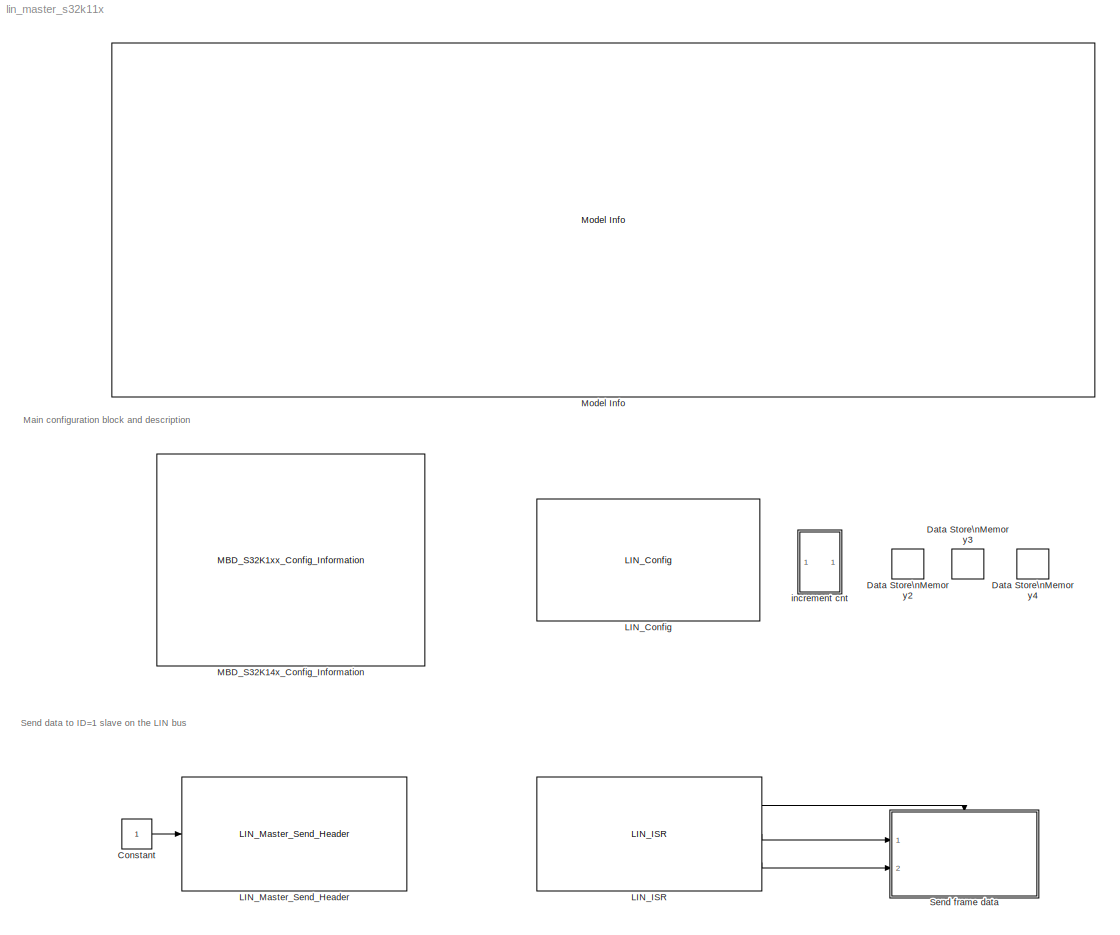
MODEL lin_master_s32k11x
KIND model
CONFIG InitFcn = mbd_s32k_consistency_checks(bdroot(gcs));
BLOCK [Constant] Constant
  OutDataTypeStr = uint8
  SID = 80
BLOCK [DataStoreMemory] Data Store\nMemory2
  DataStoreName = event
  OutDataTypeStr = uint8
  ReadBeforeWriteMsg = warning
  SID = 112
  ShowAdditionalParam = off
  WriteAfterReadMsg = warning
  WriteAfterWriteMsg = warning
BLOCK [DataStoreMemory] Data Store\nMemory3
  DataStoreName = frameid
  OutDataTypeStr = uint8
  ReadBeforeWriteMsg = warning
  SID = 113
  ShowAdditionalParam = off
  WriteAfterReadMsg = warning
  WriteAfterWriteMsg = warning
BLOCK [DataStoreMemory] Data Store\nMemory4
  DataStoreName = send
  InitialValue = [4 4 4 4 4 4]
  OutDataTypeStr = uint8
  ReadBeforeWriteMsg = warning
  SID = 173
  ShowAdditionalParam = off
  WriteAfterReadMsg = warning
  WriteAfterWriteMsg = warning
BLOCK [Reference] LIN_Config  REF=mbd_s32k1xx_ec_toolbox/Communication Blocks/LIN Blocks/LIN_Config
  Ports = []
  Priority = 1
  SID = 76
  SourceBlock = mbd_s32k1xx_ec_toolbox/Communication Blocks/LIN Blocks/LIN_Config
  SourceType = lin_s32k_config
  autobaud_enable = None
  baudrate = 9600
  cts = PTA6: [LPUART1_CTS | Clear To Send (bar)]
  instance = 1
  node_function = MASTER
  rts = PTA7: [LPUART1_RTS | Request To Send]
  rx = PTC6: [LPUART1_RX | Receive]
  tx = PTC7: [LPUART1_TX | Transmit]
BLOCK [Reference] LIN_ISR  REF=mbd_s32k1xx_ec_toolbox/Communication Blocks/LIN Blocks/LIN_ISR
  Ports = [0, 3]
  SID = 196
  SourceBlock = mbd_s32k1xx_ec_toolbox/Communication Blocks/LIN Blocks/LIN_ISR
  SourceType = lin_s32k_isr
  instance = 1
BLOCK [Reference] LIN_Master_Send_Header  REF=mbd_s32k1xx_ec_toolbox/Communication Blocks/LIN Blocks/LIN_Master_Send_Header
  Ports = [1]
  SID = 77
  SourceBlock = mbd_s32k1xx_ec_toolbox/Communication Blocks/LIN Blocks/LIN_Master_Send_Header
  SourceType = lin_s32k_send_header
  instance = 1
BLOCK [Reference] MBD_S32K14x_Config_Information  REF=mbd_s32k1xx_ec_toolbox/MBD_S32K1xx_Config_Information
  ADC_PcrCheckEnDis = on
  AMMCLIB_PcrCheckEnDis = on
  CMP_PcrCheckEnDis = on
  CSEc_PcrCheckEnDis = off
  ConfigParams_PcrCheckEnDis = on
  FM_PcrCheckEnDis = on
  FTM_Dual_Edge_Inputs_PcrCheckEnDis = on
  FTM_Hall_Sensor_Inputs_PcrCheckEnDis = on
  FTM_Input_Edge_Inputs_PcrCheckEnDis = on
  FTM_PWM_PcrCheckEnDis = on
  FTM_Quadrature_Inputs_PcrCheckEnDis = on
  FlexCAN_PcrCheckEnDis = on
  FlexIO_PcrCheckEnDis = on
  GPIO_InputPcrCheckEnDis = on
  GPIO_OutputPcrCheckEnDis = on
  LIN_PcrCheckEnDis = on
  LPI2C_PcrCheckEnDis = on
  LPSPI_PcrCheckEnDis = on
  LPTMR_PcrCheckEnDis = on
  LPUART_PcrCheckEnDis = on
  ModelRef_PcrCheckEnDis = on
  PDB0_PcrCheckEnDis = on
  PIT_PcrCheckEnDis = on
  Ports = []
  Profile_PcrCheckEnDis = on
  RTC_PcrCheckEnDis = on
  SBC_PcrCheckEnDis = on
  SID = 1
  SourceBlock = mbd_s32k1xx_ec_toolbox/MBD_S32K1xx_Config_Information
  SourceType = MBDTBX_EC_S32K
  WDOG_PcrCheckEnDis = on
  config_params = []
  disp_str = Target : S32K144-48KB_SRAM\nPackage : 100-pin\nSystem clock : 80 MHz\nXTAL clock : External 8 MHz\nCompiler : IAR\nTarget Type : FLASH\nDownload Code after build : off\nStep Tick Interrupt Priority : 15
  ds_import_enable = on
  eDMA_PcrCheckEnDis = on
  gcc_target_assemble_opts = -mcpu=cortex-m0plus -mthumb -g
  gcc_target_compile_opts = -mcpu=cortex-m0plus -mthumb -O1 -g -gstrict-dwarf
  gcc_target_default_lcf = on
  gcc_target_link_opts = -mcpu=cortex-m0plus -mthumb
  gcc_target_user_lcf = S32K118_25_flash.ld
  ghs_target_assemble_opts = -mcpu=cortexm0plus -mthumb -fsoft --gnu_asm
  ghs_target_compile_opts = -mcpu=cortexm0plus -mthumb -fsoft -Ogeneral -Wundef -Wimplicit-int -Wshadow -Wtrigraphs --no_commons --gnu_asm -gnu99 -gdwarf-2 -G
  ghs_target_default_lcf = on
  ghs_target_link_opts = -mcpu=cortexm0plus -mthumb -fsoft
  ghs_target_user_lcf = S32K118_25_flash.ld
  iar_target_assemble_opts = --thumb
  iar_target_compile_opts = --thumb -Ol -e --debug --dlib_config normal
  iar_target_default_lcf = on
  iar_target_link_opts = --no_exceptions --vfe --inline
  iar_target_user_lcf = S32K118_25_flash.icf
  mbdt_ver = 0
  mcu_steptick_prio = 0
  mcu_steptick_timer = LPIT Channel 0
  mcu_system_clock_freq = 40
  mcu_target_name = S32K118
  mcu_target_package = 64-LQFP
  mcu_target_sram_size = 25KB
  mcu_xtal_freq = External 40
  pil_download_enable = off
  pil_download_rate = 57600
  pil_opensda_drive = Custom
  pil_opensda_drive_custom = D
  pil_uart_instance = 0
  pil_uart_rx = PTB0: [LPUART0_RX | Receive]
  pil_uart_tx = PTB1: [LPUART0_TX | Transmit]
  rbl_com_port = Custom
  rbl_com_port_custom = COM1
  rbl_download_enable = on
  rbl_download_interface = OpenSDA
  rbl_restart_request = off
  rbl_start_delay = 5000000
  target_compiler = GCC
  target_memory = FLASH
BLOCK [Reference] Model Info  REF=simulink/Model-Wide\nUtilities/Model Info
  DisplayStringWithTags = %<ModelName>\n%<Description>
  Frame = on
  HorizontalTextAlignment = Center
  LeftAlignmentValue = 0.5
  MaskDisplayString = lin_master_s32k11x\\nBasic example for demonstrating LIN blocks function. The demo requires 2 boards, one running the code from this model, one running the code from the slave model.\\n\\nMaster sends header with ID=1 [PID automatically calculated].\\nThis triggers a callback, handled by LIN Callback block.\\nWhen the ISR is triggered, event (LIN_PID_OK/LIN_PID_ERROR/LIN_CHECKSUM_ERROR/etc) and fr...<+951ch>
  Ports = []
  SID = 184
  SourceBlock = simulink/Model-Wide\nUtilities/Model Info
  SourceProductBaseCode = SL
  SourceProductName = Simulink
  SourceType = CMBlock
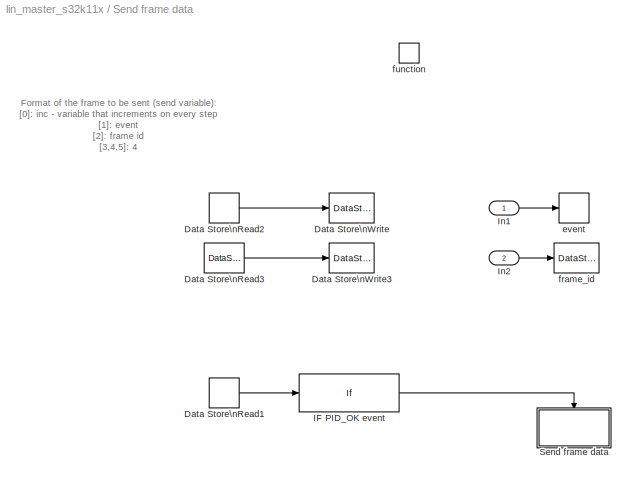
BLOCK [SubSystem] Send frame data
  Ports = [2, 0, 0, 1]
  RTWSystemCode = Nonreusable function
  RequestExecContextInheritance = off
  SID = 22
  TreatAsAtomicUnit = on
  Variant = off
BLOCK [DataStoreRead] Send frame data/Data Store\nRead1
  DataStoreName = event
  Ports = [0, 1]
  SID = 195
BLOCK [DataStoreRead] Send frame data/Data Store\nRead2
  DataStoreName = event
  Ports = [0, 1]
  Priority = 2
  SID = 181
BLOCK [DataStoreRead] Send frame data/Data Store\nRead3
  DataStoreName = frameid
  Ports = [0, 1]
  SID = 182
BLOCK [DataStoreWrite] Send frame data/Data Store\nWrite
  DataStoreElements = send(2)
  DataStoreName = send
  Ports = [1]
  Priority = 1
  SID = 180
BLOCK [DataStoreWrite] Send frame data/Data Store\nWrite3
  DataStoreElements = send(3)
  DataStoreName = send
  Ports = [1]
  Priority = 1
  SID = 183
BLOCK [If] Send frame data/IF PID_OK event
  IfExpression = u1 == 6
  Ports = [1, 1]
  SID = 194
  ShowElse = off
BLOCK [Inport] Send frame data/In1
  IconDisplay = Port number
  SID = 110
BLOCK [Inport] Send frame data/In2
  IconDisplay = Port number
  Port = 2
  SID = 111
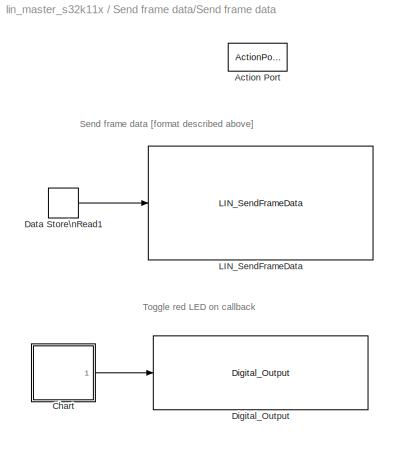
BLOCK [SubSystem] Send frame data/Send frame data
  Ports = [0, 0, 0, 0, 0, 0, 0, 1]
  RequestExecContextInheritance = off
  SID = 190
  TreatAsAtomicUnit = on
  Variant = off
BLOCK [ActionPort] Send frame data/Send frame data/Action Port
  SID = 192
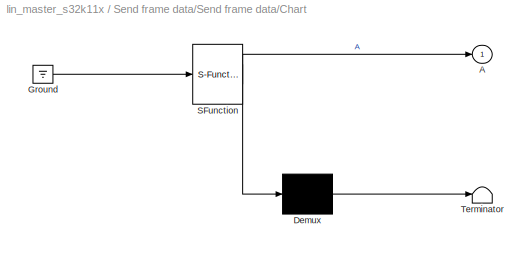
BLOCK [SubSystem] Send frame data/Send frame data/Chart
  ErrorFcn = Stateflow.Translate.translate
  PermitHierarchicalResolution = ExplicitOnly
  Ports = [0, 1]
  RequestExecContextInheritance = off
  SFBlockType = Chart
  SID = 24
  TreatAsAtomicUnit = on
  Variant = off
BLOCK [Outport] Send frame data/Send frame data/Chart/ A
  IconDisplay = Port number
  SID = 24::6
BLOCK [Demux] Send frame data/Send frame data/Chart/ Demux 
  Outputs = 1
  Ports = [1, 1]
  SID = 24::40
BLOCK [Ground] Send frame data/Send frame data/Chart/ Ground 
  SID = 24::42
BLOCK [S-Function] Send frame data/Send frame data/Chart/ SFunction 
  EnableBusSupport = off
  FunctionName = sf_sfun
  PortCounts = [1 2]
  Ports = [1, 2]
  SFcnIsStateOwnerBlock = off
  SFunctionDeploymentMode = off
  SID = 24::39
  Tag = Stateflow S-Function lin_master_s32k11x 2
BLOCK [Terminator] Send frame data/Send frame data/Chart/ Terminator 
  SID = 24::41
BLOCK [DataStoreRead] Send frame data/Send frame data/Data Store\nRead1
  DataStoreName = send
  Ports = [0, 1]
  Priority = 2
  SID = 179
BLOCK [Reference] Send frame data/Send frame data/Digital_Output  REF=mbd_s32k1xx_ec_toolbox/GPIO Blocks/Digital_Output
  Ports = [1]
  Priority = 28
  SID = 25
  SourceBlock = mbd_s32k1xx_ec_toolbox/GPIO Blocks/Digital_Output
  SourceType = gpio_s32k_output
  drive_strength = Low
  gpio_pin = PTD15: [PTD15 | Port D I/O]
  init_val = Low
BLOCK [Reference] Send frame data/Send frame data/LIN_SendFrameData  REF=mbd_s32k1xx_ec_toolbox/Communication Blocks/LIN Blocks/LIN_SendFrameData
  Ports = [1]
  Priority = 23
  SID = 165
  SourceBlock = mbd_s32k1xx_ec_toolbox/Communication Blocks/LIN Blocks/LIN_SendFrameData
  SourceType = lin_s32k_transmit_data
  instance = 1
BLOCK [DataStoreWrite] Send frame data/event
  DataStoreName = event
  Ports = [1]
  Priority = 1
  SID = 117
BLOCK [DataStoreWrite] Send frame data/frame_id
  DataStoreName = frameid
  Ports = [1]
  SID = 118
BLOCK [TriggerPort] Send frame data/function
  Ports = []
  SID = 23
  StatesWhenEnabling = held
  TriggerType = function-call
  VariantControl = Variant
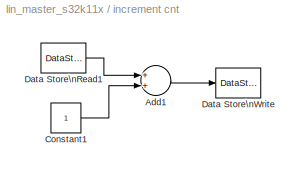
BLOCK [SubSystem] increment cnt
  Ports = []
  RequestExecContextInheritance = off
  SID = 96
  Variant = off
BLOCK [Sum] increment cnt/Add1
  InputSameDT = off
  OutDataTypeStr = Inherit: Inherit via internal rule
  Ports = [2, 1]
  SID = 177
  SaturateOnIntegerOverflow = off
BLOCK [Constant] increment cnt/Constant1
  OutDataTypeStr = uint8
  SID = 178
BLOCK [DataStoreRead] increment cnt/Data Store\nRead1
  DataStoreElements = send(1)
  DataStoreName = send
  Ports = [0, 1]
  SID = 175
BLOCK [DataStoreWrite] increment cnt/Data Store\nWrite
  DataStoreElements = send(1)
  DataStoreName = send
  Ports = [1]
  SID = 176
ANNOTATION (root): Main configuration block and description
ANNOTATION (root): Send data to ID=1 slave on the LIN bus
ANNOTATION Send frame data: Format of the frame to be sent (send variable):\n[0]: inc - variable that increments on every step\n[1]: event\n[2]: frame id\n[3,4,5]: 4
ANNOTATION Send frame data/Send frame data: Send frame data [format described above]
ANNOTATION Send frame data/Send frame data: Toggle red LED on callback
LINE Constant:1 -> LIN_Master_Send_Header:1
LINE LIN_ISR:1 -> Send frame data:trigger
LINE LIN_ISR:2 -> Send frame data:1
LINE LIN_ISR:3 -> Send frame data:2
LINE Send frame data/Data Store\nRead1:1 -> Send frame data/IF PID_OK event:1
LINE Send frame data/Data Store\nRead2:1 -> Send frame data/Data Store\nWrite:1
LINE Send frame data/Data Store\nRead3:1 -> Send frame data/Data Store\nWrite3:1
LINE Send frame data/IF PID_OK event:1 -> Send frame data/Send frame data:ifaction
LINE Send frame data/In1:1 -> Send frame data/event:1
LINE Send frame data/In2:1 -> Send frame data/frame_id:1
LINE Send frame data/Send frame data/Chart/ Demux :1 -> Send frame data/Send frame data/Chart/ Terminator :1
LINE Send frame data/Send frame data/Chart/ Ground :1 -> Send frame data/Send frame data/Chart/ SFunction :1
LINE Send frame data/Send frame data/Chart/ SFunction :1 -> Send frame data/Send frame data/Chart/ Demux :1
LINE Send frame data/Send frame data/Chart/ SFunction :2 -> Send frame data/Send frame data/Chart/ A:1
LINE Send frame data/Send frame data/Chart:1 -> Send frame data/Send frame data/Digital_Output:1
LINE Send frame data/Send frame data/Data Store\nRead1:1 -> Send frame data/Send frame data/LIN_SendFrameData:1
LINE increment cnt/Add1:1 -> increment cnt/Data Store\nWrite:1
LINE increment cnt/Constant1:1 -> increment cnt/Add1:2
LINE increment cnt/Data Store\nRead1:1 -> increment cnt/Add1:1
CHART Send frame data/Send frame data/Chart states=2 transitions=3
  STATE_LABEL 'A'
  STATE_LABEL 'A1'
